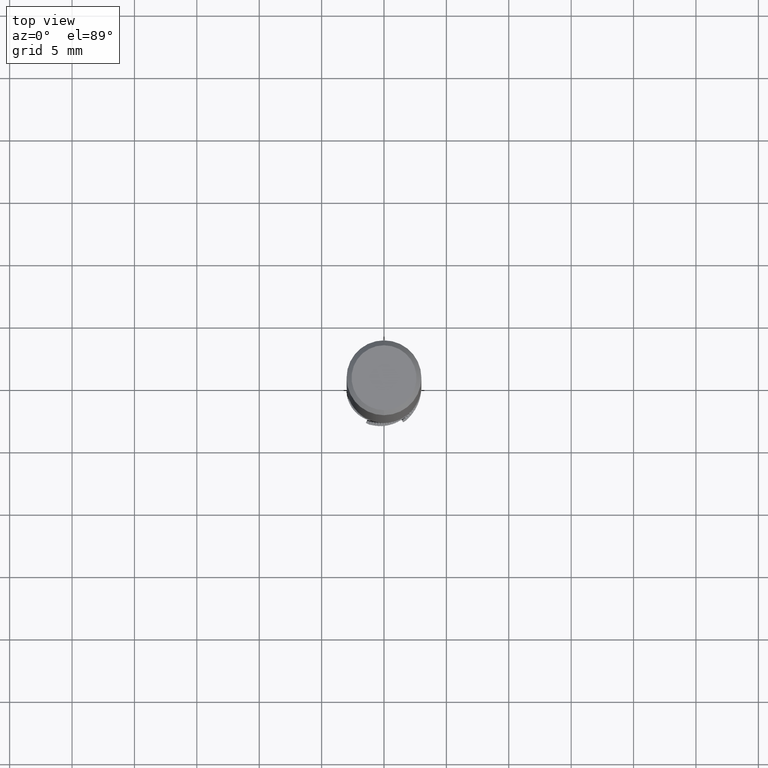
[diagram: clean part render]
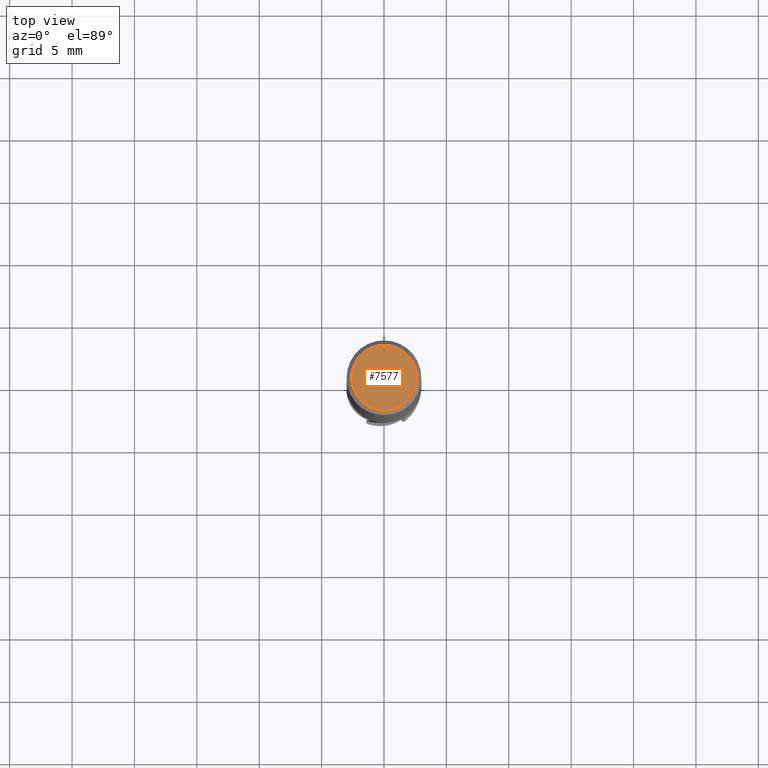
[diagram: same view with one face highlighted and labeled with its STEP entity id]
A machine part, top view. The second image highlights one B-rep face of the part: STEP entity #7577.
In plain terms, the highlighted planar face has unit normal (-0, 0, 1).
Its self-contained STEP definition (entity closure, byte-faithful):
#4575=VERTEX_POINT('',#10358);
#5269=EDGE_CURVE('',#4575,#7191,#11116,.T.);
#5463=EDGE_CURVE('',#7191,#4575,#11326,.T.);
#7191=VERTEX_POINT('',#13205);
#7577=ADVANCED_FACE('',(#13629),#13630,.T.);
#10358=CARTESIAN_POINT('',(0.0,2.6,0.0));
#11116=CIRCLE('',#27649,2.6);
#11326=CIRCLE('',#28688,2.6);
#13205=CARTESIAN_POINT('',(3.18397651993818E-016,-2.6,0.0));
#13629=FACE_OUTER_BOUND('',#41518,.T.);
#13630=PLANE('',#41519);
#27649=AXIS2_PLACEMENT_3D('',#48645,#48646,#48647);
#28688=AXIS2_PLACEMENT_3D('',#48815,#48816,#48817);
#41518=EDGE_LOOP('',(#50583,#50584));
#41519=AXIS2_PLACEMENT_3D('',#50585,#50586,#50587);
#48645=CARTESIAN_POINT('',(0.0,0.0,0.0));
#48646=DIRECTION('',(0.0,0.0,-1.0));
#48647=DIRECTION('',(0.0,1.0,0.0));
#48815=CARTESIAN_POINT('',(0.0,0.0,0.0));
#48816=DIRECTION('',(0.0,0.0,-1.0));
#48817=DIRECTION('',(0.0,1.0,0.0));
#50583=ORIENTED_EDGE('',*,*,#5269,.F.);
#50584=ORIENTED_EDGE('',*,*,#5463,.F.);
#50585=CARTESIAN_POINT('',(0.0,1.3,0.0));
#50586=DIRECTION('',(-0.0,0.0,1.0));
#50587=DIRECTION('',(0.0,-1.0,0.0));